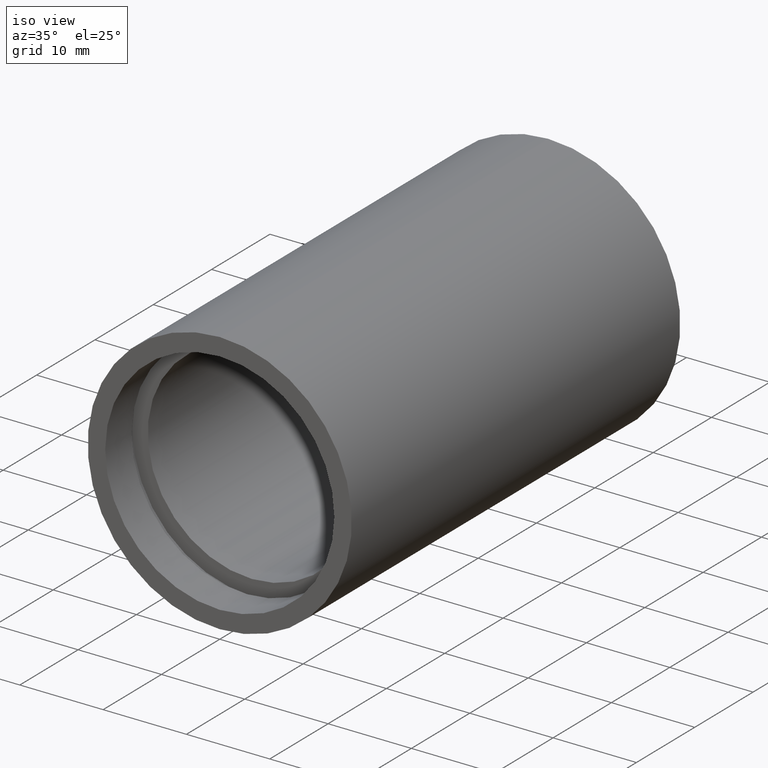
[diagram: clean part render]
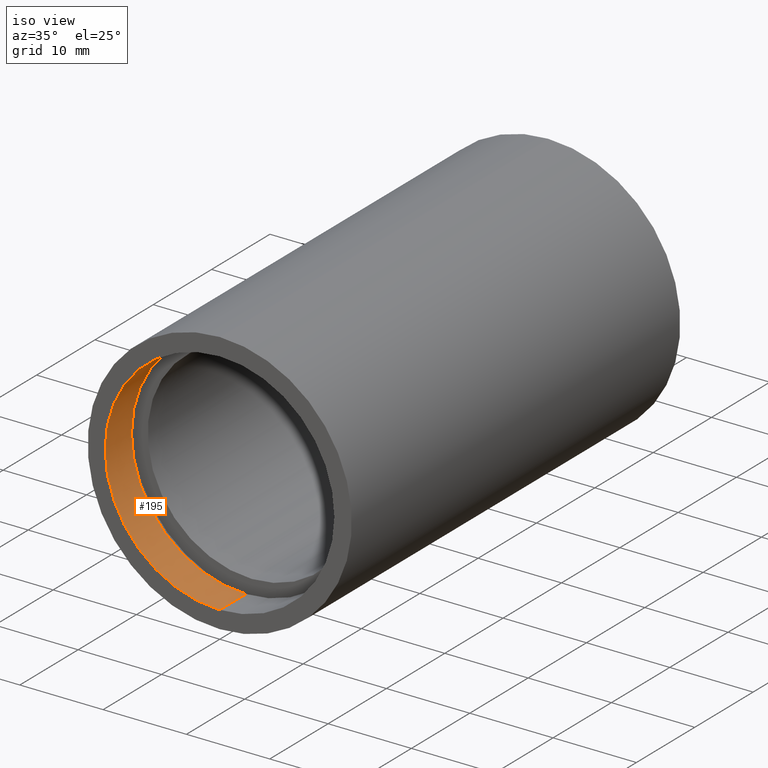
[diagram: same view with one face highlighted and labeled with its STEP entity id]
A machine part, iso view. The second image highlights one B-rep face of the part: STEP entity #195.
In plain terms, the highlighted cylindrical surface (partial cylindrical patch) has radius 13.75 mm, axis along (-0, 1, -0).
Its self-contained STEP definition (entity closure, byte-faithful):
#3 = CARTESIAN_POINT ( 'NONE',  ( 1.683889348827613200E-015, 161.3761669434274500, -13.75000000000002100 ) ) ;
#5 = DIRECTION ( 'NONE',  ( -0.0000000000000000000, 1.000000000000000000, -0.0000000000000000000 ) ) ;
#57 = LINE ( 'NONE', #3, #319 ) ;
#59 = CIRCLE ( 'NONE', #389, 13.75000000000002100 ) ;
#60 = EDGE_LOOP ( 'NONE', ( #260, #436, #326, #68 ) ) ;
#66 = CARTESIAN_POINT ( 'NONE',  ( 0.0000000000000000000, -2.775557561562891400E-014, 0.0000000000000000000 ) ) ;
#68 = ORIENTED_EDGE ( 'NONE', *, *, #405, .F. ) ;
#88 = EDGE_CURVE ( 'NONE', #120, #388, #59, .T. ) ;
#111 = VERTEX_POINT ( 'NONE', #413 ) ;
#120 = VERTEX_POINT ( 'NONE', #421 ) ;
#126 = DIRECTION ( 'NONE',  ( -0.0000000000000000000, 1.000000000000000000, -0.0000000000000000000 ) ) ;
#133 = LINE ( 'NONE', #208, #577 ) ;
#137 = EDGE_CURVE ( 'NONE', #210, #111, #464, .T. ) ;
#145 = FACE_OUTER_BOUND ( 'NONE', #60, .T. ) ;
#151 = DIRECTION ( 'NONE',  ( -0.0000000000000000000, 1.000000000000000000, -0.0000000000000000000 ) ) ;
#171 = DIRECTION ( 'NONE',  ( -0.0000000000000000000, 1.000000000000000000, -0.0000000000000000000 ) ) ;
#180 = DIRECTION ( 'NONE',  ( 0.0000000000000000000, 0.0000000000000000000, 1.000000000000000000 ) ) ;
#195 = ADVANCED_FACE ( 'NONE', ( #145 ), #358, .F. ) ;
#208 = CARTESIAN_POINT ( 'NONE',  ( 0.0000000000000000000, 161.3761669434274500, 13.75000000000002100 ) ) ;
#210 = VERTEX_POINT ( 'NONE', #578 ) ;
#260 = ORIENTED_EDGE ( 'NONE', *, *, #88, .F. ) ;
#272 = DIRECTION ( 'NONE',  ( -0.0000000000000000000, 1.000000000000000000, -0.0000000000000000000 ) ) ;
#278 = DIRECTION ( 'NONE',  ( 0.0000000000000000000, 0.0000000000000000000, 1.000000000000000000 ) ) ;
#296 = CARTESIAN_POINT ( 'NONE',  ( 0.0000000000000000000, -2.775557561562891400E-014, 13.75000000000002100 ) ) ;
#319 = VECTOR ( 'NONE', #151, 1000.000000000000000 ) ;
#326 = ORIENTED_EDGE ( 'NONE', *, *, #137, .T. ) ;
#358 = CYLINDRICAL_SURFACE ( 'NONE', #509, 13.75000000000002100 ) ;
#371 = EDGE_CURVE ( 'NONE', #120, #210, #57, .T. ) ;
#388 = VERTEX_POINT ( 'NONE', #296 ) ;
#389 = AXIS2_PLACEMENT_3D ( 'NONE', #66, #171, #470 ) ;
#405 = EDGE_CURVE ( 'NONE', #388, #111, #133, .T. ) ;
#413 = CARTESIAN_POINT ( 'NONE',  ( 0.0000000000000000000, 4.499999999999976000, 13.75000000000002100 ) ) ;
#421 = CARTESIAN_POINT ( 'NONE',  ( 1.683889348827613200E-015, -2.775557561562891400E-014, -13.75000000000002100 ) ) ;
#436 = ORIENTED_EDGE ( 'NONE', *, *, #371, .T. ) ;
#464 = CIRCLE ( 'NONE', #616, 13.75000000000002100 ) ;
#470 = DIRECTION ( 'NONE',  ( 0.0000000000000000000, 0.0000000000000000000, 1.000000000000000000 ) ) ;
#509 = AXIS2_PLACEMENT_3D ( 'NONE', #530, #272, #180 ) ;
#530 = CARTESIAN_POINT ( 'NONE',  ( 0.0000000000000000000, 161.3761669434274500, 0.0000000000000000000 ) ) ;
#571 = CARTESIAN_POINT ( 'NONE',  ( 0.0000000000000000000, 4.499999999999976000, 0.0000000000000000000 ) ) ;
#577 = VECTOR ( 'NONE', #5, 1000.000000000000000 ) ;
#578 = CARTESIAN_POINT ( 'NONE',  ( 1.683889348827613200E-015, 4.499999999999976000, -13.75000000000002100 ) ) ;
#616 = AXIS2_PLACEMENT_3D ( 'NONE', #571, #126, #278 ) ;